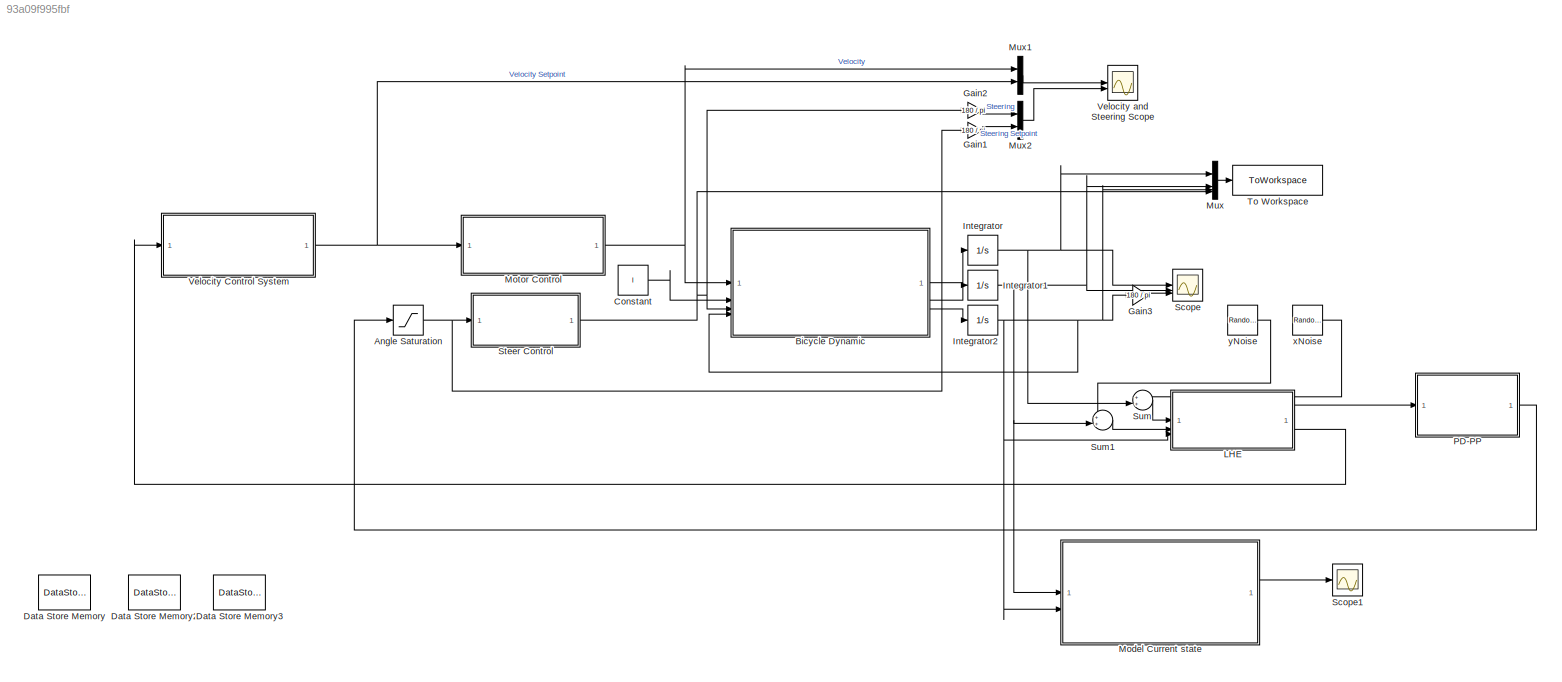
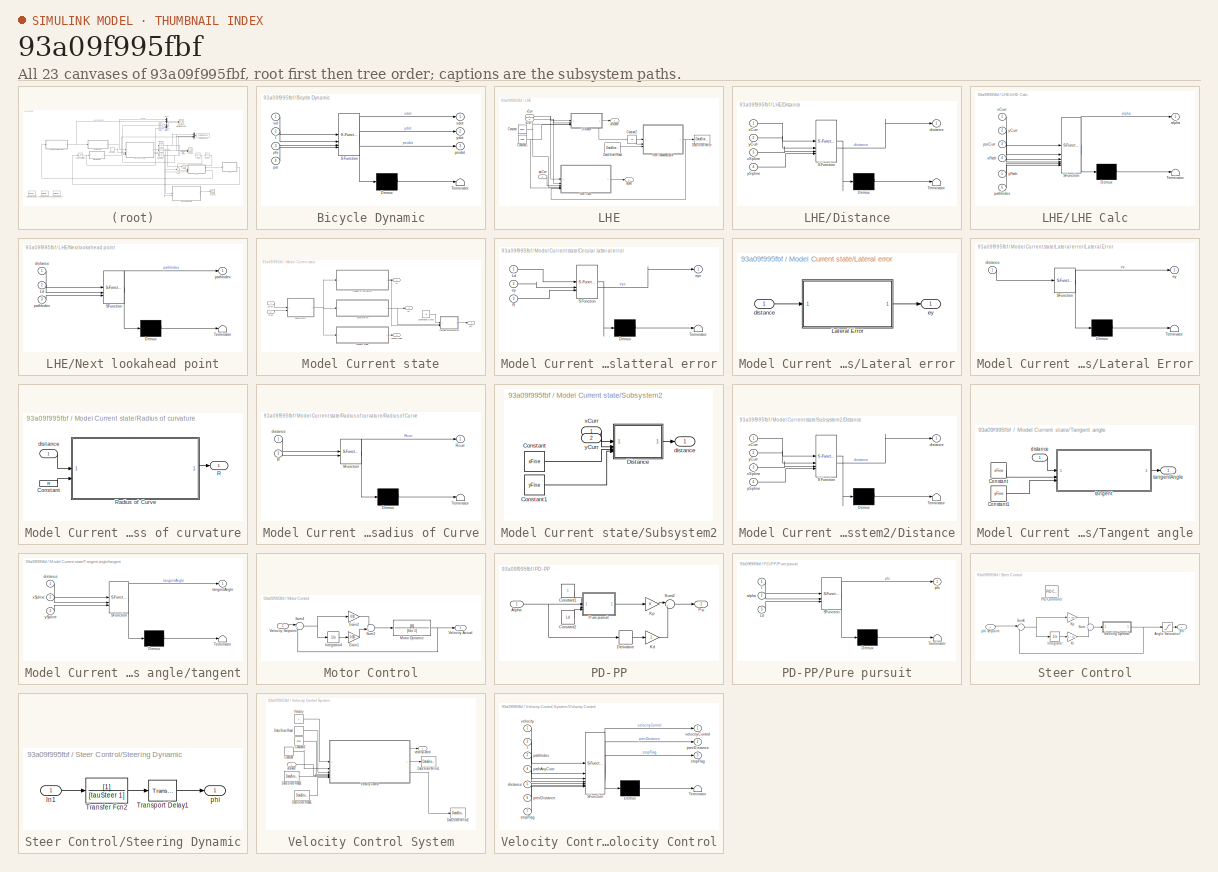
[diagram: thumbnail index - all 23 canvases of the model, root first then tree order]
MODEL slx_93a09f995fbf
KIND model
CONFIG AbsTol = auto
CONFIG EnableMultiTasking = off
CONFIG FixedStep = 0.01
CONFIG InitFcn = params\n
CONFIG MaxStep = auto
CONFIG MinStep = auto
CONFIG RelTol = 1e-3
CONFIG SampleTimeConstraint = Unconstrained
CONFIG SolverName = ode4
CONFIG StartTime = 0.0
CONFIG StopFcn = drawPath\n
CONFIG StopTime = 100
BLOCK [Saturate] Angle Saturation
  LowerLimit = -30 * pi / 180
  UpperLimit = 30 * pi / 180
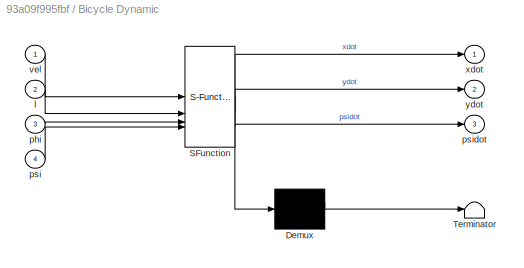
BLOCK [SubSystem] Bicycle Dynamic
  ErrorFcn = Stateflow.Translate.translate
  LibrarySourceBlock = simulink/User-Defined\nFunctions/MATLAB Function
  PermitHierarchicalResolution = ExplicitOnly
  SFBlockType = MATLAB Function
  TreatAsAtomicUnit = on
BLOCK [Demux] Bicycle Dynamic/ Demux 
  Outputs = 1
BLOCK [S-Function] Bicycle Dynamic/ SFunction 
  EnableBusSupport = on
  FunctionName = sf_sfun
  PortCounts = [4 4]
  SFcnIsStateOwnerBlock = off
  SFunctionDeploymentMode = off
  Tag = Stateflow S-Function 2
BLOCK [Terminator] Bicycle Dynamic/ Terminator 
BLOCK [Inport] Bicycle Dynamic/l
  Port = 2
BLOCK [Inport] Bicycle Dynamic/phi
  Port = 3
BLOCK [Inport] Bicycle Dynamic/psi
  Port = 4
BLOCK [Outport] Bicycle Dynamic/psidot
  Port = 3
BLOCK [Inport] Bicycle Dynamic/vel
BLOCK [Outport] Bicycle Dynamic/xdot
BLOCK [Outport] Bicycle Dynamic/ydot
  Port = 2
BLOCK [Constant] Constant
  Value = l
BLOCK [DataStoreMemory] Data Store Memory
  DataStoreName = pathIndex
  ShowAdditionalParam = off
  WriteAfterWriteMsg = warning
BLOCK [DataStoreMemory] Data Store Memory2
  DataLogging = on
  DataStoreName = prevDistance
  InitialValue = inf
  ShowAdditionalParam = off
  WriteAfterWriteMsg = warning
BLOCK [DataStoreMemory] Data Store Memory3
  DataStoreName = stopFlag
  ShowAdditionalParam = off
  WriteAfterWriteMsg = warning
BLOCK [Gain] Gain1
  Gain = 180 / pi
BLOCK [Gain] Gain2
  Gain = 180 / pi
BLOCK [Gain] Gain3
  Gain = 180 / pi
BLOCK [Integrator] Integrator
BLOCK [Integrator] Integrator1
  InitialCondition = -15
BLOCK [Integrator] Integrator2
BLOCK [SubSystem] LHE
BLOCK [Constant] LHE/Constant
  Value = xFine
BLOCK [Constant] LHE/Constant1
  Value = yFine
BLOCK [Constant] LHE/Constant2
  Value = Ld
BLOCK [DataStoreRead] LHE/Data Store Read
  DataStoreName = pathIndex
  IndexOptions = Index vector (dialog)
  Indices = 1
  OutputSizes = 1
BLOCK [DataStoreWrite] LHE/Data Store Write
  DataStoreName = pathIndex
  IndexOptions = Index vector (dialog)
  Indices = 1
  OutputSizes = 1
BLOCK [SubSystem] LHE/Distance
  ErrorFcn = Stateflow.Translate.translate
  LibrarySourceBlock = simulink/User-Defined\nFunctions/MATLAB Function
  PermitHierarchicalResolution = ExplicitOnly
  SFBlockType = MATLAB Function
  TreatAsAtomicUnit = on
BLOCK [Demux] LHE/Distance/ Demux 
  Outputs = 1
BLOCK [S-Function] LHE/Distance/ SFunction 
  EnableBusSupport = on
  FunctionName = sf_sfun
  PortCounts = [4 2]
  SFcnIsStateOwnerBlock = off
  SFunctionDeploymentMode = off
  Tag = Stateflow S-Function 9
BLOCK [Terminator] LHE/Distance/ Terminator 
BLOCK [Outport] LHE/Distance/distance
BLOCK [Inport] LHE/Distance/xCurr
BLOCK [Inport] LHE/Distance/xSpline
  Port = 3
BLOCK [Inport] LHE/Distance/yCurr
  Port = 2
BLOCK [Inport] LHE/Distance/ySpline
  Port = 4
BLOCK [SubSystem] LHE/LHE Calc
  ErrorFcn = Stateflow.Translate.translate
  LibrarySourceBlock = simulink/User-Defined\nFunctions/MATLAB Function
  PermitHierarchicalResolution = ExplicitOnly
  SFBlockType = MATLAB Function
  TreatAsAtomicUnit = on
BLOCK [Demux] LHE/LHE Calc/ Demux 
  Outputs = 1
BLOCK [S-Function] LHE/LHE Calc/ SFunction 
  EnableBusSupport = on
  FunctionName = sf_sfun
  PortCounts = [6 2]
  SFcnIsStateOwnerBlock = off
  SFunctionDeploymentMode = off
  Tag = Stateflow S-Function 6
BLOCK [Terminator] LHE/LHE Calc/ Terminator 
BLOCK [Outport] LHE/LHE Calc/alpha
BLOCK [Inport] LHE/LHE Calc/pathIndex
  Port = 6
BLOCK [Inport] LHE/LHE Calc/psiCurr
  Port = 3
BLOCK [Inport] LHE/LHE Calc/xCurr
BLOCK [Inport] LHE/LHE Calc/xPath
  Port = 4
BLOCK [Inport] LHE/LHE Calc/yCurr
  Port = 2
BLOCK [Inport] LHE/LHE Calc/yPath
  Port = 5
BLOCK [SubSystem] LHE/Next lookahead point
  ErrorFcn = Stateflow.Translate.translate
  LibrarySourceBlock = simulink/User-Defined\nFunctions/MATLAB Function
  PermitHierarchicalResolution = ExplicitOnly
  SFBlockType = MATLAB Function
  TreatAsAtomicUnit = on
BLOCK [Demux] LHE/Next lookahead point/ Demux 
  Outputs = 1
BLOCK [S-Function] LHE/Next lookahead point/ SFunction 
  EnableBusSupport = on
  FunctionName = sf_sfun
  PortCounts = [3 2]
  SFcnIsStateOwnerBlock = off
  SFunctionDeploymentMode = off
  Tag = Stateflow S-Function 7
BLOCK [Terminator] LHE/Next lookahead point/ Terminator 
BLOCK [Inport] LHE/Next lookahead point/Ld
  Port = 2
BLOCK [Inport] LHE/Next lookahead point/distance
BLOCK [Outport] LHE/Next lookahead point/pathIndex
BLOCK [Inport] LHE/Next lookahead point/pathIndex 
  Port = 3
BLOCK [Outport] LHE/alpha
BLOCK [Outport] LHE/distance
  Port = 2
BLOCK [Inport] LHE/psiCurr
  Port = 3
BLOCK [Inport] LHE/xCurr
BLOCK [Inport] LHE/yCurr
  Port = 2
BLOCK [SubSystem] Model Current state
BLOCK [SubSystem] Model Current state/Circular latteral error
  ErrorFcn = Stateflow.Translate.translate
  LibrarySourceBlock = simulink/User-Defined\nFunctions/MATLAB Function
  PermitHierarchicalResolution = ExplicitOnly
  SFBlockType = MATLAB Function
  TreatAsAtomicUnit = on
BLOCK [Demux] Model Current state/Circular latteral error/ Demux 
  Outputs = 1
BLOCK [S-Function] Model Current state/Circular latteral error/ SFunction 
  EnableBusSupport = on
  FunctionName = sf_sfun
  PortCounts = [3 2]
  SFcnIsStateOwnerBlock = off
  SFunctionDeploymentMode = off
  Tag = Stateflow S-Function 12
BLOCK [Terminator] Model Current state/Circular latteral error/ Terminator 
BLOCK [Inport] Model Current state/Circular latteral error/Ld
BLOCK [Inport] Model Current state/Circular latteral error/R
  Port = 3
BLOCK [Inport] Model Current state/Circular latteral error/ey
  Port = 2
BLOCK [Outport] Model Current state/Circular latteral error/eyc
BLOCK [SubSystem] Model Current state/Lateral error
BLOCK [SubSystem] Model Current state/Lateral error/Lateral Error
  ErrorFcn = Stateflow.Translate.translate
  LibrarySourceBlock = simulink/User-Defined\nFunctions/MATLAB Function
  PermitHierarchicalResolution = ExplicitOnly
  SFBlockType = MATLAB Function
  TreatAsAtomicUnit = on
BLOCK [Demux] Model Current state/Lateral error/Lateral Error/ Demux 
  Outputs = 1
BLOCK [S-Function] Model Current state/Lateral error/Lateral Error/ SFunction 
  EnableBusSupport = on
  FunctionName = sf_sfun
  PortCounts = [1 2]
  SFcnIsStateOwnerBlock = off
  SFunctionDeploymentMode = off
  Tag = Stateflow S-Function 3
BLOCK [Terminator] Model Current state/Lateral error/Lateral Error/ Terminator 
BLOCK [Inport] Model Current state/Lateral error/Lateral Error/distance
BLOCK [Outport] Model Current state/Lateral error/Lateral Error/ey
BLOCK [Inport] Model Current state/Lateral error/distance
BLOCK [Outport] Model Current state/Lateral error/ey
BLOCK [Constant] Model Current state/Lookahead Const
  Value = Ld
BLOCK [Outport] Model Current state/R
BLOCK [SubSystem] Model Current state/Radius of curvature
BLOCK [Constant] Model Current state/Radius of curvature/Constant
  Value = R
BLOCK [Outport] Model Current state/Radius of curvature/R
BLOCK [SubSystem] Model Current state/Radius of curvature/Radius of Curve
  ErrorFcn = Stateflow.Translate.translate
  LibrarySourceBlock = simulink/User-Defined\nFunctions/MATLAB Function
  PermitHierarchicalResolution = ExplicitOnly
  SFBlockType = MATLAB Function
  TreatAsAtomicUnit = on
BLOCK [Demux] Model Current state/Radius of curvature/Radius of Curve/ Demux 
  Outputs = 1
BLOCK [S-Function] Model Current state/Radius of curvature/Radius of Curve/ SFunction 
  EnableBusSupport = on
  FunctionName = sf_sfun
  PortCounts = [2 2]
  SFcnIsStateOwnerBlock = off
  SFunctionDeploymentMode = off
  Tag = Stateflow S-Function 1
BLOCK [Terminator] Model Current state/Radius of curvature/Radius of Curve/ Terminator 
BLOCK [Inport] Model Current state/Radius of curvature/Radius of Curve/R
  Port = 2
BLOCK [Outport] Model Current state/Radius of curvature/Radius of Curve/Rcurr
BLOCK [Inport] Model Current state/Radius of curvature/Radius of Curve/distance
BLOCK [Inport] Model Current state/Radius of curvature/distance
BLOCK [SubSystem] Model Current state/Subsystem2
BLOCK [Constant] Model Current state/Subsystem2/Constant
  Value = xFine
BLOCK [Constant] Model Current state/Subsystem2/Constant1
  Value = yFine
BLOCK [SubSystem] Model Current state/Subsystem2/Distance
  ErrorFcn = Stateflow.Translate.translate
  LibrarySourceBlock = simulink/User-Defined\nFunctions/MATLAB Function
  PermitHierarchicalResolution = ExplicitOnly
  SFBlockType = MATLAB Function
  TreatAsAtomicUnit = on
BLOCK [Demux] Model Current state/Subsystem2/Distance/ Demux 
  Outputs = 1
BLOCK [S-Function] Model Current state/Subsystem2/Distance/ SFunction 
  EnableBusSupport = on
  FunctionName = sf_sfun
  PortCounts = [4 2]
  SFcnIsStateOwnerBlock = off
  SFunctionDeploymentMode = off
  Tag = Stateflow S-Function 5
BLOCK [Terminator] Model Current state/Subsystem2/Distance/ Terminator 
BLOCK [Outport] Model Current state/Subsystem2/Distance/distance
BLOCK [Inport] Model Current state/Subsystem2/Distance/xCurr
BLOCK [Inport] Model Current state/Subsystem2/Distance/xSpline
  Port = 3
BLOCK [Inport] Model Current state/Subsystem2/Distance/yCurr
  Port = 2
BLOCK [Inport] Model Current state/Subsystem2/Distance/ySpline
  Port = 4
BLOCK [Outport] Model Current state/Subsystem2/distance
BLOCK [Inport] Model Current state/Subsystem2/xCurr
BLOCK [Inport] Model Current state/Subsystem2/yCurr
  Port = 2
BLOCK [SubSystem] Model Current state/Tangent angle
BLOCK [Constant] Model Current state/Tangent angle/Constant
  Value = xFine
BLOCK [Constant] Model Current state/Tangent angle/Constant1
  Value = yFine
BLOCK [Inport] Model Current state/Tangent angle/distance
BLOCK [SubSystem] Model Current state/Tangent angle/tangent
  ErrorFcn = Stateflow.Translate.translate
  LibrarySourceBlock = simulink/User-Defined\nFunctions/MATLAB Function
  PermitHierarchicalResolution = ExplicitOnly
  SFBlockType = MATLAB Function
  TreatAsAtomicUnit = on
BLOCK [Demux] Model Current state/Tangent angle/tangent/ Demux 
  Outputs = 1
BLOCK [S-Function] Model Current state/Tangent angle/tangent/ SFunction 
  EnableBusSupport = on
  FunctionName = sf_sfun
  PortCounts = [3 2]
  SFcnIsStateOwnerBlock = off
  SFunctionDeploymentMode = off
  Tag = Stateflow S-Function 4
BLOCK [Terminator] Model Current state/Tangent angle/tangent/ Terminator 
BLOCK [Inport] Model Current state/Tangent angle/tangent/distance
BLOCK [Outport] Model Current state/Tangent angle/tangent/tangentAngle
BLOCK [Inport] Model Current state/Tangent angle/tangent/xSpline
  Port = 2
BLOCK [Inport] Model Current state/Tangent angle/tangent/ySpline
  Port = 3
BLOCK [Outport] Model Current state/Tangent angle/tangentAngle
BLOCK [Outport] Model Current state/ey
  Port = 2
BLOCK [Outport] Model Current state/eyc
  Port = 4
BLOCK [Outport] Model Current state/tangentAngle
  Port = 3
BLOCK [Inport] Model Current state/xCurr
BLOCK [Inport] Model Current state/yCurr
  Port = 2
BLOCK [SubSystem] Motor Control
BLOCK [Gain] Motor Control/Gain1
  Gain = 0.015
BLOCK [Gain] Motor Control/Gain2
  Gain = 0.02
BLOCK [Integrator] Motor Control/Integrator4
BLOCK [TransferFcn] Motor Control/Motor Dynamic
  Denominator = [tau 1]
  Numerator = [K]
BLOCK [Sum] Motor Control/Sum2
BLOCK [Sum] Motor Control/Sum4
  Inputs = |+-
BLOCK [Outport] Motor Control/Velocity Actual
BLOCK [Inport] Motor Control/Velocity Setpoint
BLOCK [Mux] Mux
  DisplayOption = bar
BLOCK [Mux] Mux1
  DisplayOption = bar
  Inputs = 2
BLOCK [Mux] Mux2
  DisplayOption = bar
  Inputs = 2
BLOCK [SubSystem] PD-PP
BLOCK [Inport] PD-PP/Alpha
BLOCK [Constant] PD-PP/Constant1
  Value = l
BLOCK [Constant] PD-PP/Constant2
  Value = Ld
BLOCK [Derivative] PD-PP/Derivative
BLOCK [Gain] PD-PP/Kd
  Gain = .1
BLOCK [Gain] PD-PP/Kp
BLOCK [Outport] PD-PP/Psi
BLOCK [SubSystem] PD-PP/Pure pursuit
  ErrorFcn = Stateflow.Translate.translate
  LibrarySourceBlock = simulink/User-Defined\nFunctions/MATLAB Function
  PermitHierarchicalResolution = ExplicitOnly
  SFBlockType = MATLAB Function
  TreatAsAtomicUnit = on
BLOCK [Demux] PD-PP/Pure pursuit/ Demux 
  Outputs = 1
BLOCK [S-Function] PD-PP/Pure pursuit/ SFunction 
  EnableBusSupport = on
  FunctionName = sf_sfun
  PortCounts = [3 2]
  SFcnIsStateOwnerBlock = off
  SFunctionDeploymentMode = off
  Tag = Stateflow S-Function 10
BLOCK [Terminator] PD-PP/Pure pursuit/ Terminator 
BLOCK [Inport] PD-PP/Pure pursuit/Ld
  Port = 3
BLOCK [Inport] PD-PP/Pure pursuit/alpha
  Port = 2
BLOCK [Inport] PD-PP/Pure pursuit/l
BLOCK [Outport] PD-PP/Pure pursuit/phi
BLOCK [Sum] PD-PP/Sum2
  Inputs = |++
BLOCK [Scope] Scope
  Floating = off
  NumInputPorts = 3
  ScopeSpecificationString = Simulink.scopes.TimeScopeBlockCfg('CurrentConfiguration', extmgr.ConfigurationSet(extmgr.Configuration('Core','General UI',true),extmgr.Configuration('Core','Source UI',true),extmgr.Configuration('Sources','WiredSimulink',true),extmgr.Configuration('Visuals','Time Domain',true,'SerializedDisplays',{struct('MinYLimReal','-13.81269','MaxYLimReal','124.31424','YLabelReal','','MinYLimMag','0.00000','M...<+2658ch>
BLOCK [Scope] Scope1
  Floating = off
  NumInputPorts = 1
  ScopeSpecificationString = Simulink.scopes.TimeScopeBlockCfg('CurrentConfiguration', extmgr.ConfigurationSet(extmgr.Configuration('Core','General UI',true),extmgr.Configuration('Core','Source UI',true),extmgr.Configuration('Sources','WiredSimulink',true,'DataLoggingVariableName','ScopeData1'),extmgr.Configuration('Visuals','Time Domain',true,'SerializedDisplays',{struct('MinYLimReal','-12.17691','MaxYLimReal','110.42741','Y...<+1420ch>
BLOCK [SubSystem] Steer Control
BLOCK [Saturate] Steer Control/Angle Saturation
  LowerLimit = -30 * pi / 180
  UpperLimit = 30 * pi / 180
BLOCK [Integrator] Steer Control/Integrator
BLOCK [Gain] Steer Control/Ki
  Gain = (2 * tauSteer / (3 * taud)) / taud
BLOCK [Gain] Steer Control/Kp
  Gain = 2 * tauSteer / (3 * taud)
BLOCK [Reference] Steer Control/PID Controller  REF=slpidlib/PID Controller
  LibrarySourceBlock = simulink/Continuous/PID Controller
  SourceBlock = slpidlib/PID Controller
  SourceType = PID 1dof
BLOCK [SubSystem] Steer Control/Steering Dynamic
BLOCK [Inport] Steer Control/Steering Dynamic/In1
BLOCK [TransferFcn] Steer Control/Steering Dynamic/Transfer Fcn2
  Denominator = [tauSteer 1]
BLOCK [TransportDelay] Steer Control/Steering Dynamic/Transport Delay1
  DelayTime = taud
BLOCK [Outport] Steer Control/Steering Dynamic/phi
BLOCK [Sum] Steer Control/Sum
BLOCK [Sum] Steer Control/Sum6
  Inputs = |+-
BLOCK [Outport] Steer Control/phi
BLOCK [Inport] Steer Control/phi setpoint
BLOCK [Sum] Sum
  Inputs = ++|
BLOCK [Sum] Sum1
  Inputs = ++|
BLOCK [ToWorkspace] To Workspace
  FixptAsFi = on
  MaxDataPoints = inf
  SampleTime = -1
  SaveFormat = Timeseries
  VariableName = path
BLOCK [SubSystem] Velocity Control System
BLOCK [Constant] Velocity Control System/Constant
  Value = l
BLOCK [Constant] Velocity Control System/Constant3
  Value = xFine
BLOCK [DataStoreRead] Velocity Control System/Data Store Read
  DataStoreName = pathIndex
  IndexOptions = Index vector (dialog)
  Indices = 1
  OutputSizes = 1
BLOCK [DataStoreRead] Velocity Control System/Data Store Read1
  DataStoreName = stopFlag
  IndexOptions = Index vector (dialog)
  Indices = 1
  OutputSizes = 1
BLOCK [DataStoreRead] Velocity Control System/Data Store Read2
  DataStoreName = prevDistance
  IndexOptions = Index vector (dialog)
  Indices = 1
  OutputSizes = 1
BLOCK [DataStoreWrite] Velocity Control System/Data Store Write1
  DataStoreName = prevDistance
  IndexOptions = Index vector (dialog)
  Indices = 1
  OutputSizes = 1
BLOCK [DataStoreWrite] Velocity Control System/Data Store Write2
  DataStoreName = stopFlag
  IndexOptions = Index vector (dialog)
  Indices = 1
  OutputSizes = 1
BLOCK [Constant] Velocity Control System/Velocity
  Value = v
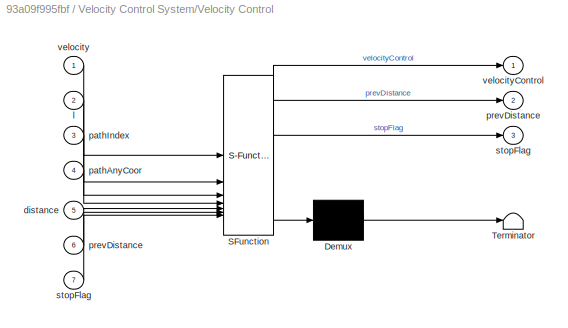
BLOCK [SubSystem] Velocity Control System/Velocity Control
  ErrorFcn = Stateflow.Translate.translate
  LibrarySourceBlock = simulink/User-Defined\nFunctions/MATLAB Function
  PermitHierarchicalResolution = ExplicitOnly
  SFBlockType = MATLAB Function
  TreatAsAtomicUnit = on
BLOCK [Demux] Velocity Control System/Velocity Control/ Demux 
  Outputs = 1
BLOCK [S-Function] Velocity Control System/Velocity Control/ SFunction 
  EnableBusSupport = on
  FunctionName = sf_sfun
  PortCounts = [7 4]
  SFcnIsStateOwnerBlock = off
  SFunctionDeploymentMode = off
  Tag = Stateflow S-Function 11
BLOCK [Terminator] Velocity Control System/Velocity Control/ Terminator 
BLOCK [Inport] Velocity Control System/Velocity Control/distance
  Port = 5
BLOCK [Inport] Velocity Control System/Velocity Control/l
  Port = 2
BLOCK [Inport] Velocity Control System/Velocity Control/pathAnyCoor
  Port = 4
BLOCK [Inport] Velocity Control System/Velocity Control/pathIndex
  Port = 3
BLOCK [Outport] Velocity Control System/Velocity Control/prevDistance
  Port = 2
BLOCK [Inport] Velocity Control System/Velocity Control/prevDistance 
  Port = 6
BLOCK [Outport] Velocity Control System/Velocity Control/stopFlag
  Port = 3
BLOCK [Inport] Velocity Control System/Velocity Control/stopFlag 
  Port = 7
BLOCK [Inport] Velocity Control System/Velocity Control/velocity
BLOCK [Outport] Velocity Control System/Velocity Control/velocityControl
BLOCK [Inport] Velocity Control System/distance
BLOCK [Outport] Velocity Control System/velocityControl
BLOCK [Scope] Velocity and Steering Scope
  Floating = off
  NumInputPorts = 2
  ScopeSpecificationString = Simulink.scopes.TimeScopeBlockCfg('CurrentConfiguration', extmgr.ConfigurationSet(extmgr.Configuration('Core','General UI',true),extmgr.Configuration('Core','Source UI',true),extmgr.Configuration('Sources','WiredSimulink',true,'DataLoggingVariableName','ScopeData1'),extmgr.Configuration('Visuals','Time Domain',true,'SerializedDisplays',{struct('MinYLimReal','-2.66973','MaxYLimReal','19.66974','YLa...<+2219ch>
BLOCK [RandomNumber] xNoise
  SampleTime = 0.1
  Seed = 10
  Variance = 3
BLOCK [RandomNumber] yNoise
  SampleTime = 0.1
  Seed = 10
  Variance = 3
NET Angle Saturation:1 -> Gain1:1, Steer Control:1
LINE Bicycle Dynamic:1 -> Integrator:1
LINE Bicycle Dynamic:2 -> Integrator1:1
LINE Bicycle Dynamic:3 -> Integrator2:1
LINE Constant:1 -> Bicycle Dynamic:2
LINE Gain1:1 -> Mux2:2
LINE Gain2:1 -> Mux2:1
LINE Gain3:1 -> Scope:3
NET Integrator1:1 -> Model Current state:1, Mux:2, Scope:2, Sum1:2
NET Integrator2:1 -> Bicycle Dynamic:4, Gain3:1, LHE:3, Model Current state:2, Mux:3
NET Integrator:1 -> Mux:1, Scope:1, Sum:2
NET LHE/Constant1:1 -> LHE/Distance:4, LHE/LHE Calc:5
LINE LHE/Constant2:1 -> LHE/Next lookahead point:2
NET LHE/Constant:1 -> LHE/Distance:3, LHE/LHE Calc:4
LINE LHE/Data Store Read:1 -> LHE/Next lookahead point:3
NET LHE/Distance:1 -> LHE/Next lookahead point:1, LHE/distance:1
LINE LHE/LHE Calc:1 -> LHE/alpha:1
NET LHE/Next lookahead point:1 -> LHE/Data Store Write:1, LHE/LHE Calc:6
LINE LHE/psiCurr:1 -> LHE/LHE Calc:3
NET LHE/xCurr:1 -> LHE/Distance:1, LHE/LHE Calc:1
NET LHE/yCurr:1 -> LHE/Distance:2, LHE/LHE Calc:2
LINE LHE:1 -> PD-PP:1
LINE LHE:2 -> Velocity Control System:1
LINE Model Current state/Circular latteral error:1 -> Model Current state/eyc:1
LINE Model Current state/Lateral error/Lateral Error:1 -> Model Current state/Lateral error/ey:1
LINE Model Current state/Lateral error/distance:1 -> Model Current state/Lateral error/Lateral Error:1
NET Model Current state/Lateral error:1 -> Model Current state/Circular latteral error:2, Model Current state/ey:1
LINE Model Current state/Lookahead Const:1 -> Model Current state/Circular latteral error:1
LINE Model Current state/Radius of curvature/Constant:1 -> Model Current state/Radius of curvature/Radius of Curve:2
LINE Model Current state/Radius of curvature/Radius of Curve:1 -> Model Current state/Radius of curvature/R:1
LINE Model Current state/Radius of curvature/distance:1 -> Model Current state/Radius of curvature/Radius of Curve:1
NET Model Current state/Radius of curvature:1 -> Model Current state/Circular latteral error:3, Model Current state/R:1
LINE Model Current state/Subsystem2/Constant1:1 -> Model Current state/Subsystem2/Distance:4
LINE Model Current state/Subsystem2/Constant:1 -> Model Current state/Subsystem2/Distance:3
LINE Model Current state/Subsystem2/Distance:1 -> Model Current state/Subsystem2/distance:1
LINE Model Current state/Subsystem2/xCurr:1 -> Model Current state/Subsystem2/Distance:1
LINE Model Current state/Subsystem2/yCurr:1 -> Model Current state/Subsystem2/Distance:2
NET Model Current state/Subsystem2:1 -> Model Current state/Lateral error:1, Model Current state/Radius of curvature:1, Model Current state/Tangent angle:1
LINE Model Current state/Tangent angle/Constant1:1 -> Model Current state/Tangent angle/tangent:3
LINE Model Current state/Tangent angle/Constant:1 -> Model Current state/Tangent angle/tangent:2
LINE Model Current state/Tangent angle/distance:1 -> Model Current state/Tangent angle/tangent:1
LINE Model Current state/Tangent angle/tangent:1 -> Model Current state/Tangent angle/tangentAngle:1
LINE Model Current state/Tangent angle:1 -> Model Current state/tangentAngle:1
LINE Model Current state/xCurr:1 -> Model Current state/Subsystem2:1
LINE Model Current state/yCurr:1 -> Model Current state/Subsystem2:2
LINE Model Current state:2 -> Scope1:1
LINE Motor Control/Gain1:1 -> Motor Control/Sum2:2
LINE Motor Control/Gain2:1 -> Motor Control/Sum2:1
LINE Motor Control/Integrator4:1 -> Motor Control/Gain1:1
NET Motor Control/Motor Dynamic:1 -> Motor Control/Sum4:2, Motor Control/Velocity Actual:1
LINE Motor Control/Sum2:1 -> Motor Control/Motor Dynamic:1
NET Motor Control/Sum4:1 -> Motor Control/Gain2:1, Motor Control/Integrator4:1
LINE Motor Control/Velocity Setpoint:1 -> Motor Control/Sum4:1
NET Motor Control:1 -> Bicycle Dynamic:1, Mux1:1
LINE Mux1:1 -> Velocity and Steering Scope:1
LINE Mux2:1 -> Velocity and Steering Scope:2
LINE Mux:1 -> To Workspace:1
NET PD-PP/Alpha:1 -> PD-PP/Derivative:1, PD-PP/Pure pursuit:2
LINE PD-PP/Constant1:1 -> PD-PP/Pure pursuit:1
LINE PD-PP/Constant2:1 -> PD-PP/Pure pursuit:3
LINE PD-PP/Derivative:1 -> PD-PP/Kd:1
LINE PD-PP/Kd:1 -> PD-PP/Sum2:2
LINE PD-PP/Kp:1 -> PD-PP/Sum2:1
LINE PD-PP/Pure pursuit:1 -> PD-PP/Kp:1
LINE PD-PP/Sum2:1 -> PD-PP/Psi:1
LINE PD-PP:1 -> Angle Saturation:1
LINE Steer Control/Angle Saturation:1 -> Steer Control/phi:1
LINE Steer Control/Integrator:1 -> Steer Control/Ki:1
LINE Steer Control/Ki:1 -> Steer Control/Sum:2
LINE Steer Control/Kp:1 -> Steer Control/Sum:1
LINE Steer Control/Steering Dynamic/In1:1 -> Steer Control/Steering Dynamic/Transfer Fcn2:1
LINE Steer Control/Steering Dynamic/Transfer Fcn2:1 -> Steer Control/Steering Dynamic/Transport Delay1:1
LINE Steer Control/Steering Dynamic/Transport Delay1:1 -> Steer Control/Steering Dynamic/phi:1
NET Steer Control/Steering Dynamic:1 -> Steer Control/Angle Saturation:1, Steer Control/Sum6:2
NET Steer Control/Sum6:1 -> Steer Control/Integrator:1, Steer Control/Kp:1
LINE Steer Control/Sum:1 -> Steer Control/Steering Dynamic:1
LINE Steer Control/phi setpoint:1 -> Steer Control/Sum6:1
NET Steer Control:1 -> Bicycle Dynamic:3, Gain2:1, Mux:4
LINE Sum1:1 -> LHE:2
LINE Sum:1 -> LHE:1
LINE Velocity Control System/Constant3:1 -> Velocity Control System/Velocity Control:4
LINE Velocity Control System/Constant:1 -> Velocity Control System/Velocity Control:2
LINE Velocity Control System/Data Store Read1:1 -> Velocity Control System/Velocity Control:7
LINE Velocity Control System/Data Store Read2:1 -> Velocity Control System/Velocity Control:6
LINE Velocity Control System/Data Store Read:1 -> Velocity Control System/Velocity Control:3
LINE Velocity Control System/Velocity Control:1 -> Velocity Control System/velocityControl:1
LINE Velocity Control System/Velocity Control:2 -> Velocity Control System/Data Store Write1:1
LINE Velocity Control System/Velocity Control:3 -> Velocity Control System/Data Store Write2:1
LINE Velocity Control System/Velocity:1 -> Velocity Control System/Velocity Control:1
LINE Velocity Control System/distance:1 -> Velocity Control System/Velocity Control:5
NET Velocity Control System:1 -> Motor Control:1, Mux1:2
LINE xNoise:1 -> Sum:1
LINE yNoise:1 -> Sum1:1
note: NET lines group one-source signal fan-out (src -> all destinations, sorted); 1:1 wires keep LINE
CHART Velocity Control System/Velocity Control states=1 transitions=1
  STATE_LABEL 'eML_blk_kernel()'
  STATE_LABEL 'SCRIPT:\nfunction [velocityControl, prevDistance, stopFlag] = fcn(velocity, l, pathIndex, pathAnyCoor, distance, prevDistance, stopFlag)\n    if pathIndex >= size(pathAnyCoor)\n        if ((distance(end) < 15)) || stopFlag == 1\n            velocityControl = 0;\n            prevDistance = 0; % Ensure stopping\n            stopFlag = 1;\n        else\n            velocityControl = velocity;\n            pre...<+134ch>'
CHART Model Current state/Circular latteral error states=1 transitions=1
  STATE_LABEL 'eML_blk_kernel()'
  STATE_LABEL 'SCRIPT:\nfunction eyc = fcn(Ld, ey, R)\n    eyc = (-Ld^2 - ey^2 + 2 * R * ey) / (2 * (R - ey));'
CHART Model Current state/Radius of curvature/Radius of Curve states=1 transitions=1
  STATE_LABEL 'eML_blk_kernel()'
  STATE_LABEL 'SCRIPT:\nfunction Rcurr = fcn(distance, R)\n    \n    [~, minIdx] = min(distance);\n\n    Rcurr = R(minIdx);'
CHART Bicycle Dynamic states=1 transitions=1
  STATE_LABEL 'eML_blk_kernel()'
  STATE_LABEL 'SCRIPT:\nfunction [xdot, ydot, psidot] = fcn(vel, l, phi, psi)\n    matrix = [cos(psi)      0               0\n              0             sin(psi)        0\n              0             0               tan(phi)];\n\n    lengthVector = [1; 1; 1 / l];\n    globalVel = matrix * lengthVector * vel;\n    xdot = globalVel(1);\n    ydot = globalVel(2);\n    psidot = globalVel(3);\n\n'
CHART Model Current state/Lateral error/Lateral Error states=1 transitions=1
  STATE_LABEL 'eML_blk_kernel()'
  STATE_LABEL 'SCRIPT:\nfunction ey = fcn(distance)\n    [ey, ~] = min(distance);'
CHART Model Current state/Tangent angle/tangent states=1 transitions=1
  STATE_LABEL 'eML_blk_kernel()'
  STATE_LABEL 'SCRIPT:\nfunction tangentAngle = fcn(distance, xSpline, ySpline)\n    [~, idx] = min(distance);\n    \n    step = 2;\n    if idx <= step\n        dy = ySpline(idx + step) - ySpline(idx);\n        dx = xSpline(idx + step) - xSpline(idx);\n    elseif idx >= length(xSpline) - step\n        dy = ySpline(idx) - ySpline(idx - step);\n        dx = xSpline(idx) - xSpline(idx - step);\n    else \n        dy = ySpline(...<+133ch>'
CHART Model Current state/Subsystem2/Distance states=1 transitions=1
  STATE_LABEL 'eML_blk_kernel()'
  STATE_LABEL 'SCRIPT:\nfunction distance = fcn(xCurr, yCurr, xSpline, ySpline)\n    distance = sqrt((xSpline - xCurr) .^ 2 + (ySpline - yCurr) .^ 2);'
CHART LHE/LHE Calc states=1 transitions=1
  STATE_LABEL 'eML_blk_kernel()'
  STATE_LABEL 'SCRIPT:\nfunction alpha = fcn(xCurr, yCurr, psiCurr, xPath, yPath, pathIndex)\n    dy = yPath(pathIndex) - yCurr;\n    dx = xPath(pathIndex) - xCurr;\n\n    % instead of geometric calculation and using if else, just rotate the\n    % points\n    rotMat = [cos(psiCurr)  sin(psiCurr)\n              -sin(psiCurr)  cos(psiCurr)];\n\n    rotatedPointDiff = rotMat * [dx; dy];\n    alpha = atan2(rotatedPointDiff(2)...<+23ch>'
CHART LHE/Next lookahead point states=1 transitions=1
  STATE_LABEL 'eML_blk_kernel()'
  STATE_LABEL 'SCRIPT:\nfunction pathIndex  = fcn(distance, Ld, pathIndex)\n    [~, minPathIdx] = mink(abs(distance - Ld), 2);\n    for idx = 1: 2\n        if minPathIdx(idx) > pathIndex && minPathIdx(idx) < pathIndex + 100\n            pathIndex = minPathIdx(idx);\n            break\n        end\n    end\n\n    \n    '
CHART LHE/Distance states=1 transitions=1
  STATE_LABEL 'eML_blk_kernel()'
  STATE_LABEL 'SCRIPT:\nfunction distance = fcn(xCurr, yCurr, xSpline, ySpline)\n    distance = sqrt((xSpline - xCurr) .^ 2 + (ySpline - yCurr) .^ 2);'
CHART PD-PP/Pure pursuit states=1 transitions=1
  STATE_LABEL 'eML_blk_kernel()'
  STATE_LABEL 'SCRIPT:\nfunction phi = fcn(l, alpha, Ld)\n    phi = 2 * l * alpha / Ld;'
CHART  states=0 transitions=0
CHART  states=0 transitions=0
CHART  states=0 transitions=0
CHART  states=0 transitions=0
CHART  states=0 transitions=0
CHART  states=0 transitions=0
CHART  states=0 transitions=0
CHART  states=0 transitions=0
CHART  states=0 transitions=0
CHART  states=0 transitions=0
CHART  states=0 transitions=0
